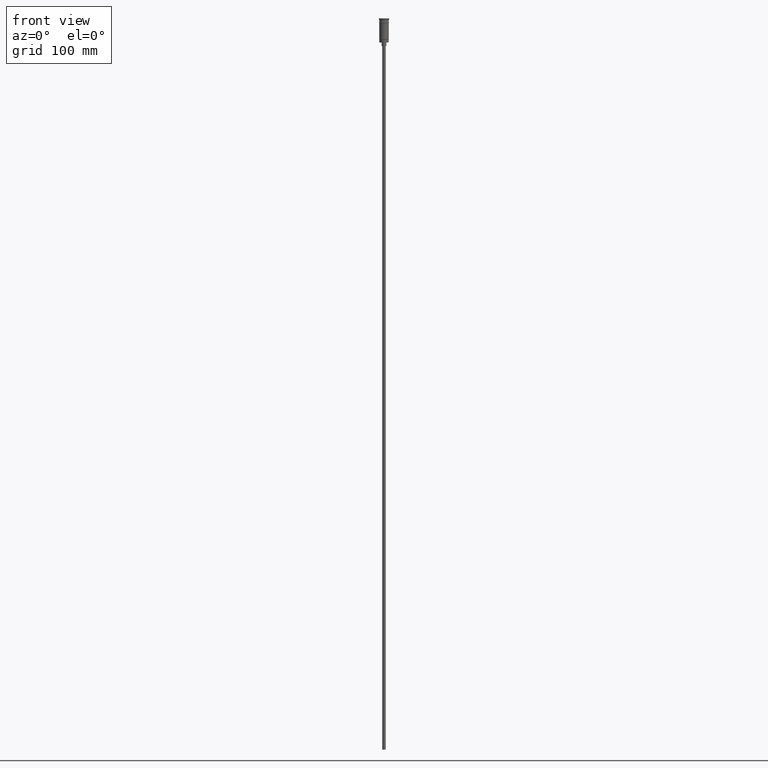
[diagram: clean part render]
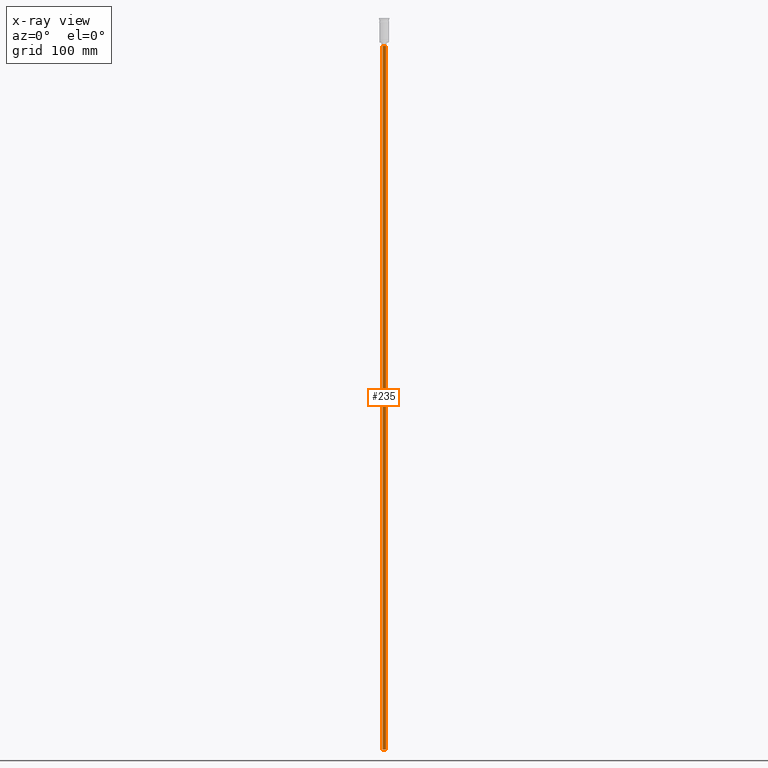
[diagram: x-ray — body ghosted, one internal face saturated and labeled with its STEP entity id]
A machine part, front view, then the same camera in x-ray: the body is ghosted and one INTERNAL B-rep face — a face not visible from any outside direction — is saturated and labeled: STEP entity #235.
In plain terms, the highlighted cylindrical surface (edge-blend (fillet) strip) has radius 1.5 mm, axis along (-0, -0, 1).
Its self-contained STEP definition (entity closure, byte-faithful):
#120 = CARTESIAN_POINT ( 'NONE',  ( 1.500000000000000222, 0.000000000000000000, -620.4999999999998863 ) ) ;
#135 = CIRCLE ( 'NONE', #914, 1.500000000000000222 ) ;
#145 = EDGE_CURVE ( 'NONE', #1356, #1310, #1520, .T. ) ;
#223 = CYLINDRICAL_SURFACE ( 'NONE', #783, 1.500000000000000222 ) ;
#235 = ADVANCED_FACE ( 'NONE', ( #702 ), #223, .T. ) ;
#252 = ORIENTED_EDGE ( 'NONE', *, *, #930, .F. ) ;
#333 = CARTESIAN_POINT ( 'NONE',  ( -1.500000000000000222, 1.836970198721030181E-16, -23.49999999999999645 ) ) ;
#578 = DIRECTION ( 'NONE',  ( -1.000000000000000000, 0.000000000000000000, 0.000000000000000000 ) ) ;
#579 = VECTOR ( 'NONE', #1058, 1000.000000000000000 ) ;
#594 = DIRECTION ( 'NONE',  ( -1.000000000000000000, 0.000000000000000000, 0.000000000000000000 ) ) ;
#615 = ORIENTED_EDGE ( 'NONE', *, *, #767, .T. ) ;
#665 = CARTESIAN_POINT ( 'NONE',  ( 1.500000000000000222, 0.000000000000000000, -620.4999999999998863 ) ) ;
#692 = EDGE_CURVE ( 'NONE', #1356, #1493, #1429, .T. ) ;
#702 = FACE_OUTER_BOUND ( 'NONE', #1604, .T. ) ;
#716 = CARTESIAN_POINT ( 'NONE',  ( 0.000000000000000000, 0.000000000000000000, -23.49999999999999645 ) ) ;
#742 = CARTESIAN_POINT ( 'NONE',  ( 1.500000000000000222, 0.000000000000000000, -23.49999999999999645 ) ) ;
#767 = EDGE_CURVE ( 'NONE', #1310, #1416, #135, .T. ) ;
#783 = AXIS2_PLACEMENT_3D ( 'NONE', #961, #1208, #1552 ) ;
#836 = VECTOR ( 'NONE', #891, 1000.000000000000000 ) ;
#889 = AXIS2_PLACEMENT_3D ( 'NONE', #1326, #1204, #578 ) ;
#891 = DIRECTION ( 'NONE',  ( -0.000000000000000000, -0.000000000000000000, 1.000000000000000000 ) ) ;
#914 = AXIS2_PLACEMENT_3D ( 'NONE', #716, #1212, #594 ) ;
#930 = EDGE_CURVE ( 'NONE', #1493, #1416, #1398, .T. ) ;
#954 = CARTESIAN_POINT ( 'NONE',  ( -1.500000000000000222, 1.836970198721030181E-16, -620.4999999999998863 ) ) ;
#961 = CARTESIAN_POINT ( 'NONE',  ( 0.000000000000000000, 0.000000000000000000, -620.4999999999998863 ) ) ;
#1058 = DIRECTION ( 'NONE',  ( -0.000000000000000000, -0.000000000000000000, 1.000000000000000000 ) ) ;
#1124 = ORIENTED_EDGE ( 'NONE', *, *, #692, .F. ) ;
#1204 = DIRECTION ( 'NONE',  ( 0.000000000000000000, 0.000000000000000000, -1.000000000000000000 ) ) ;
#1208 = DIRECTION ( 'NONE',  ( -0.000000000000000000, -0.000000000000000000, 1.000000000000000000 ) ) ;
#1212 = DIRECTION ( 'NONE',  ( 0.000000000000000000, 0.000000000000000000, -1.000000000000000000 ) ) ;
#1291 = ORIENTED_EDGE ( 'NONE', *, *, #145, .T. ) ;
#1310 = VERTEX_POINT ( 'NONE', #333 ) ;
#1326 = CARTESIAN_POINT ( 'NONE',  ( 0.000000000000000000, 0.000000000000000000, -620.4999999999998863 ) ) ;
#1356 = VERTEX_POINT ( 'NONE', #954 ) ;
#1398 = LINE ( 'NONE', #665, #579 ) ;
#1416 = VERTEX_POINT ( 'NONE', #742 ) ;
#1429 = CIRCLE ( 'NONE', #889, 1.500000000000000222 ) ;
#1493 = VERTEX_POINT ( 'NONE', #120 ) ;
#1520 = LINE ( 'NONE', #1537, #836 ) ;
#1537 = CARTESIAN_POINT ( 'NONE',  ( -1.500000000000000222, 1.836970198721030181E-16, -620.4999999999998863 ) ) ;
#1552 = DIRECTION ( 'NONE',  ( 1.000000000000000000, 0.000000000000000000, 0.000000000000000000 ) ) ;
#1604 = EDGE_LOOP ( 'NONE', ( #1124, #1291, #615, #252 ) ) ;